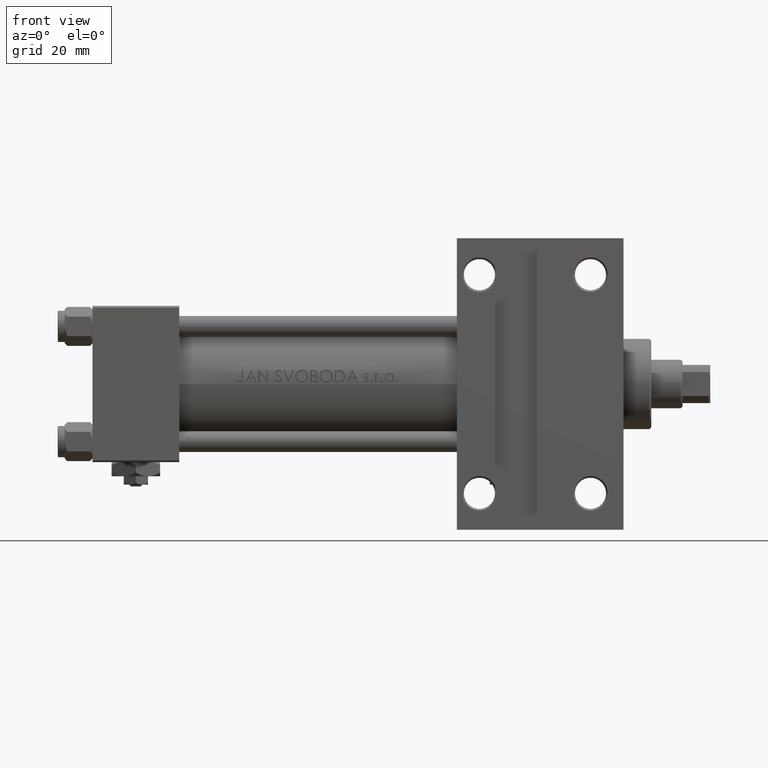
[diagram: clean part render]
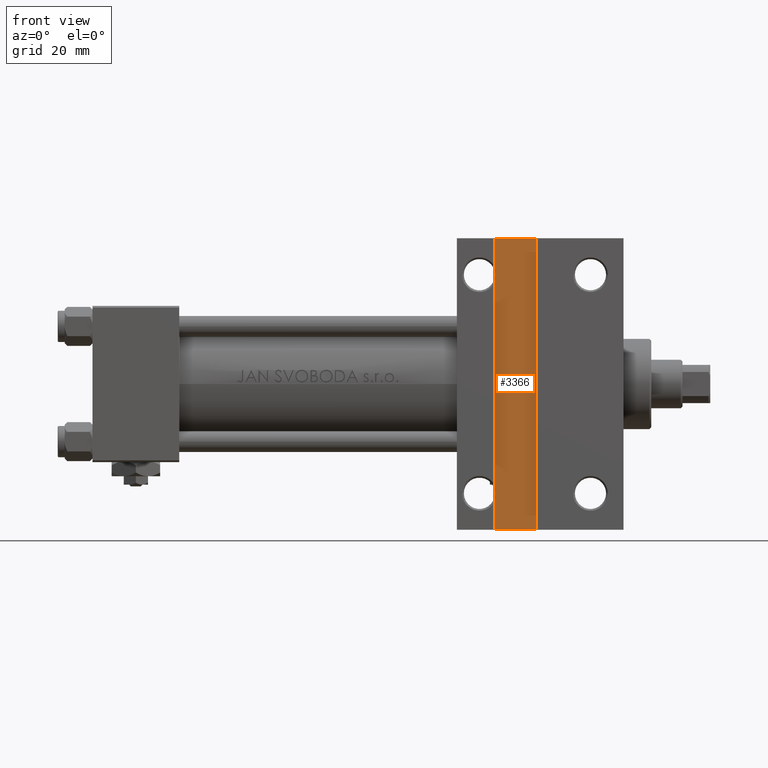
[diagram: same view with one face highlighted and labeled with its STEP entity id]
A machine part, front view. The second image highlights one B-rep face of the part: STEP entity #3366.
In plain terms, the highlighted planar face has unit normal (0, -1, 0).
Its self-contained STEP definition (entity closure, byte-faithful):
#725 = VECTOR ( 'NONE', #24988, 1000.000000000000000 ) ;
#817 = ORIENTED_EDGE ( 'NONE', *, *, #11560, .T. ) ;
#2251 = LINE ( 'NONE', #14045, #48546 ) ;
#2949 = EDGE_CURVE ( 'NONE', #41727, #10478, #2251, .T. ) ;
#3366 = ADVANCED_FACE ( 'NONE', ( #28269 ), #16962, .T. ) ;
#6867 = CARTESIAN_POINT ( 'NONE',  ( 115.9999999999999574, -41.99999999999999289, -20.00000000000000000 ) ) ;
#7976 = EDGE_LOOP ( 'NONE', ( #15291, #817, #44006, #24377 ) ) ;
#9423 = VECTOR ( 'NONE', #15164, 1000.000000000000000 ) ;
#10478 = VERTEX_POINT ( 'NONE', #16446 ) ;
#11560 = EDGE_CURVE ( 'NONE', #29751, #41727, #41824, .T. ) ;
#13436 = CARTESIAN_POINT ( 'NONE',  ( 127.9999999999999432, -41.99999999999999289, -20.00000000000000000 ) ) ;
#14045 = CARTESIAN_POINT ( 'NONE',  ( 115.9999999999999574, -41.99999999999999289, -20.00000000000000000 ) ) ;
#14454 = EDGE_CURVE ( 'NONE', #10478, #23426, #38313, .T. ) ;
#15164 = DIRECTION ( 'NONE',  ( -1.000000000000000000, -0.000000000000000000, -0.000000000000000000 ) ) ;
#15291 = ORIENTED_EDGE ( 'NONE', *, *, #26629, .T. ) ;
#15924 = CARTESIAN_POINT ( 'NONE',  ( 115.9999999999999574, 41.99999999999999289, -20.00000000000000000 ) ) ;
#16446 = CARTESIAN_POINT ( 'NONE',  ( 115.9999999999999574, 41.99999999999999289, -20.00000000000000000 ) ) ;
#16962 = PLANE ( 'NONE',  #22880 ) ;
#20174 = DIRECTION ( 'NONE',  ( 1.000000000000000000, 0.000000000000000000, 0.000000000000000000 ) ) ;
#20175 = DIRECTION ( 'NONE',  ( 0.000000000000000000, 1.000000000000000000, 0.000000000000000000 ) ) ;
#22872 = CARTESIAN_POINT ( 'NONE',  ( 115.9999999999999574, -41.99999999999999289, -20.00000000000000000 ) ) ;
#22880 = AXIS2_PLACEMENT_3D ( 'NONE', #32545, #24492, #35837 ) ;
#23426 = VERTEX_POINT ( 'NONE', #42500 ) ;
#24377 = ORIENTED_EDGE ( 'NONE', *, *, #14454, .T. ) ;
#24492 = DIRECTION ( 'NONE',  ( 0.000000000000000000, 0.000000000000000000, -1.000000000000000000 ) ) ;
#24988 = DIRECTION ( 'NONE',  ( -0.000000000000000000, -1.000000000000000000, -0.000000000000000000 ) ) ;
#26629 = EDGE_CURVE ( 'NONE', #23426, #29751, #44132, .T. ) ;
#28269 = FACE_OUTER_BOUND ( 'NONE', #7976, .T. ) ;
#28669 = CARTESIAN_POINT ( 'NONE',  ( 127.9999999999999432, -41.99999999999999289, -20.00000000000000000 ) ) ;
#29751 = VERTEX_POINT ( 'NONE', #28669 ) ;
#32545 = CARTESIAN_POINT ( 'NONE',  ( 0.000000000000000000, 0.000000000000000000, -20.00000000000000000 ) ) ;
#35837 = DIRECTION ( 'NONE',  ( -1.000000000000000000, 0.000000000000000000, -0.000000000000000000 ) ) ;
#38313 = LINE ( 'NONE', #15924, #38383 ) ;
#38383 = VECTOR ( 'NONE', #20174, 1000.000000000000000 ) ;
#41727 = VERTEX_POINT ( 'NONE', #22872 ) ;
#41824 = LINE ( 'NONE', #6867, #9423 ) ;
#42500 = CARTESIAN_POINT ( 'NONE',  ( 127.9999999999999432, 41.99999999999999289, -20.00000000000000000 ) ) ;
#44006 = ORIENTED_EDGE ( 'NONE', *, *, #2949, .T. ) ;
#44132 = LINE ( 'NONE', #13436, #725 ) ;
#48546 = VECTOR ( 'NONE', #20175, 1000.000000000000000 ) ;